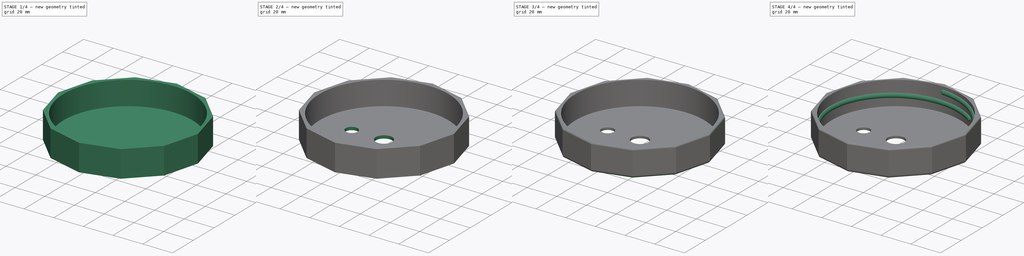
[diagram: build sequence overview — one tinted view per stage of 4, left to right]
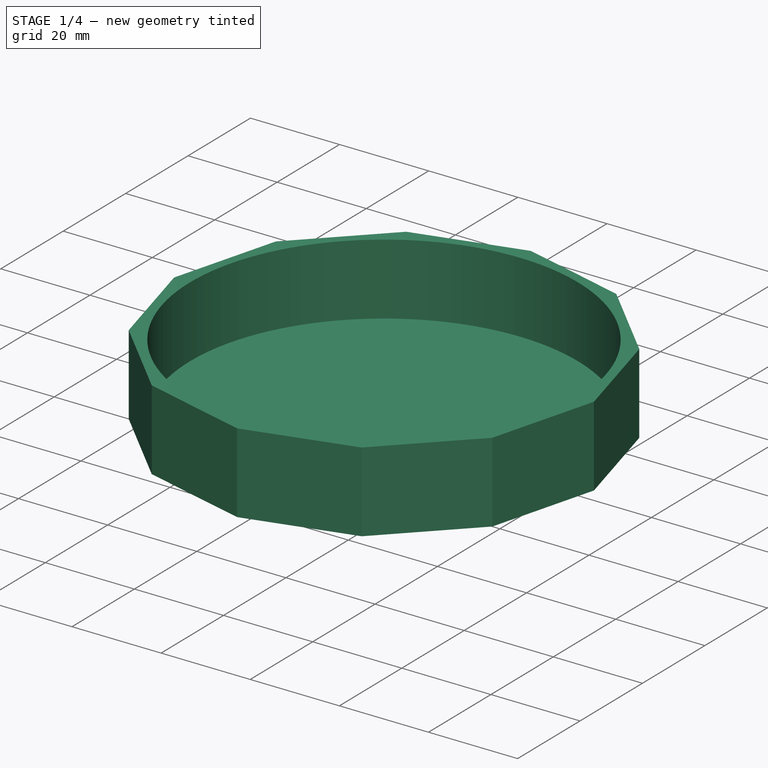
[diagram: stage 1 of 4 — iso view after this stage's code; geometry added in this stage tinted green]
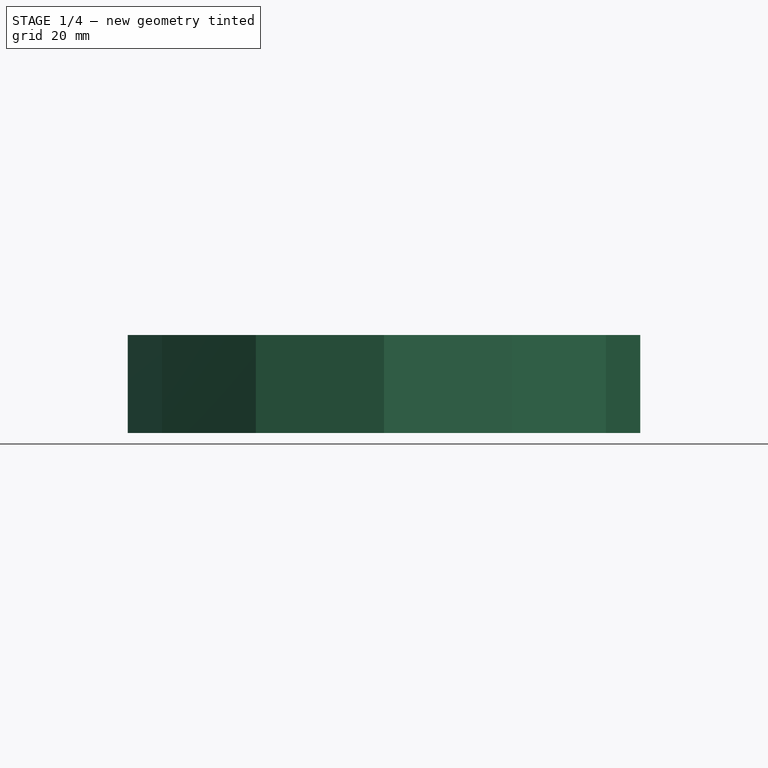
[diagram: stage 1 of 4 — front view after this stage's code; geometry added in this stage tinted green]
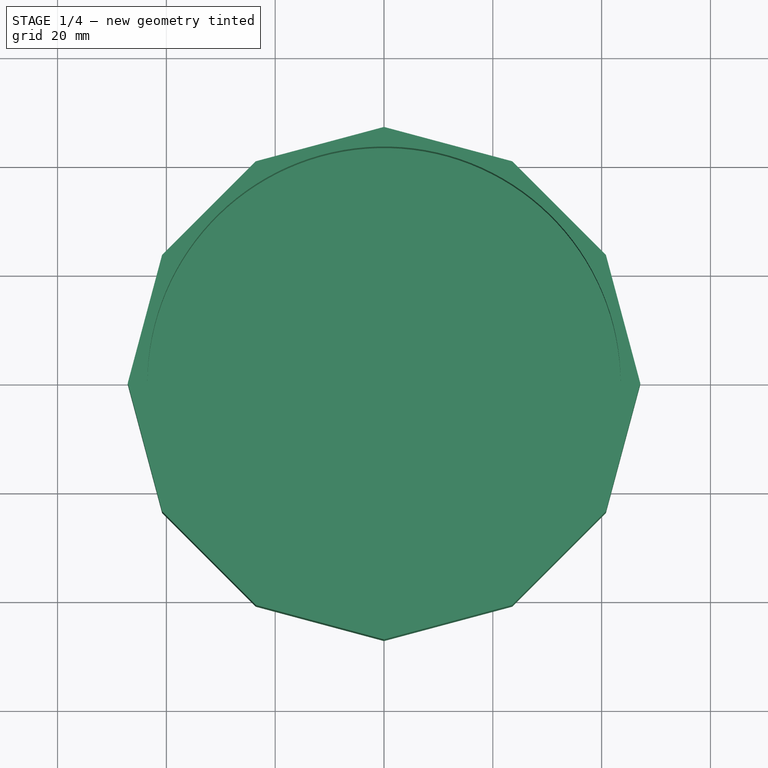
[diagram: stage 1 of 4 — top view after this stage's code; geometry added in this stage tinted green]
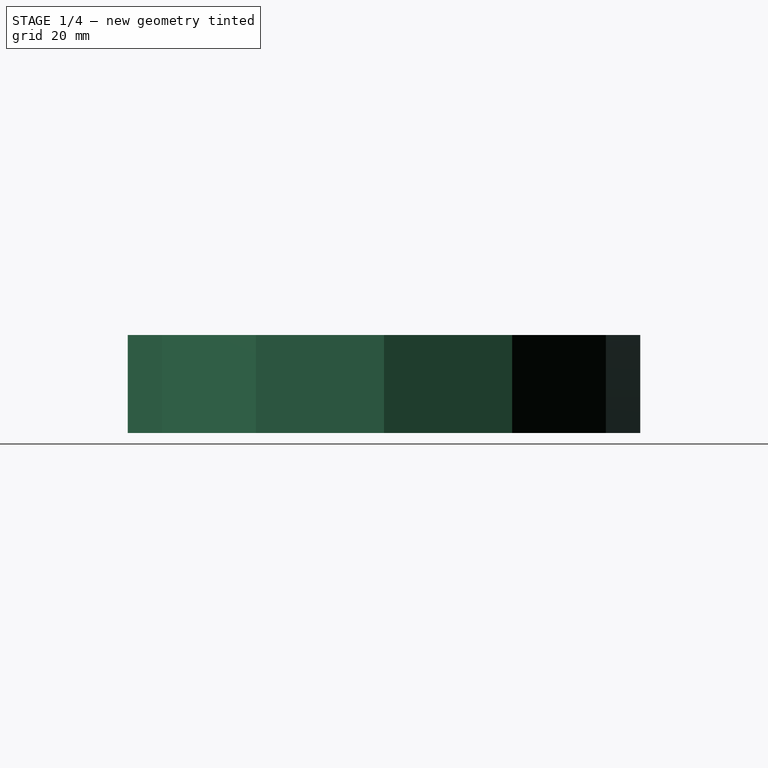
[diagram: stage 1 of 4 — right view after this stage's code; geometry added in this stage tinted green]
FCSTD DOCUMENT  (FreeCAD 2023.131R26244 +5365 (Git))
Label: Wide Mouth Jar Mycology Lid
License: All rights reserved
LicenseURL: http://en.wikipedia.org/wiki/All_rights_reserved
objects: Sketcher::SketchObject×4, PartDesign::Hole×4, PartDesign::Fillet×3, Spreadsheet::Sheet×1, PartDesign::Pad×1, PartDesign::AdditiveHelix×1, PartDesign::Chamfer×1, PartDesign::Body×1
note: 39 computed .brp shape members not serialized (recipe doc carries the construction recipe); baked Part::Feature solids carry a one-line shape summary decoded from their .brp

FEATURE [Spreadsheet::Sheet] Spreadsheet  label="Parameters"
  PythonMode = false
  ShowCells = 0
  TreeRank = 1
  cells = A2=Ring Inner Diameter; B2(Ring_Inner_Diameter)=87; C2=Should be large enough to fit over the threads on the glass jar.; A3=Ring Min Thickness; B3(Ring_Min_Thickness)=2; C3=The thickness of the thinnest part of the ring.; A4=Ring Side Height; B4(Ring_Side_Height)=16; C4=How much material will screw onto the jar.; A5=Ring Top Height; B5(Ring_Top_Height)=2; C5=How thick the lid is on top of the jar.; A7=Thread Pitch; B7(Thread_Pitch)=6.5; C7=6.5 is standard for mason jars.; A8=Thread Width; B8(Thread_Width)=3; C8=How wide an individual thread is.; A9=Thread Offset; B9(Thread_Offset)=2; C9=Distance from the bottom of the ring where the threads start.; A10=Thread Turns; B10(Thread_Turns)=1.1; C10=The number of turns inside the ring.; B12=Diameter; C12=Offset from Origin; A13=Middle Hole; B13(Middle_Hole_Diameter)=11; A14=Left Hole; B14(Left_Hole_Diameter)=8; C14(Left_Hole_Offset)==B2 / 4; A15=Right Hole; B15(Right_Hole_Diameter)=8; C15(Right_Hole_Offset)==B2 / 4; A17=Hole Fillet; B17(Hole_Fillet)=0.5; A18=Top Fillet; B18(Top_Fillet)=2; A19=Bottom Fillet; B19(Bottom_Fillet)=1
FEATURE [Sketcher::SketchObject] Sketch
  ArcFitTolerance = 1e-06
  AttachmentSupport = -> [XY_Plane]
  ExternalBSplineMaxDegree = 5
  ExternalBSplineTolerance = 0.0001
  FullyConstrained = true
  InternalTolerance = 1e-06
  InvalidShape = false
  MakeInternals = false
  MapMode = 5
  Support = -> [XY_Plane]
  TreeRank = 12
  ValidateShape = true
  expr: Constraints[37] = <<Parameters>>.Ring_Inner_Diameter / 2 + <<Parameters>>.Ring_Min_Thickness
  sketch-geometry (13):
    g0: LineSegment StartX=-40.7942 StartY=23.5525 StartZ=0 EndX=-47.1051 EndY=0 EndZ=0
    g1: LineSegment StartX=-47.1051 StartY=0 StartZ=0 EndX=-40.7942 EndY=-23.5525 EndZ=0
    g2: LineSegment StartX=-40.7942 StartY=-23.5525 StartZ=0 EndX=-23.5525 EndY=-40.7942 EndZ=0
    g3: LineSegment StartX=-23.5525 StartY=-40.7942 StartZ=0 EndX=2.13e-14 EndY=-47.1051 EndZ=0
    g4: LineSegment StartX=2.26e-14 StartY=-47.1051 StartZ=0 EndX=23.5525 EndY=-40.7942 EndZ=0
    g5: LineSegment StartX=23.5525 StartY=-40.7942 StartZ=0 EndX=40.7942 EndY=-23.5525 EndZ=0
    g6: LineSegment StartX=40.7942 StartY=-23.5525 StartZ=0 EndX=47.1051 EndY=1.07e-14 EndZ=0
    g7: LineSegment StartX=47.1051 StartY=9.2e-15 StartZ=0 EndX=40.7942 EndY=23.5525 EndZ=0
    g8: LineSegment StartX=40.7942 StartY=23.5525 StartZ=0 EndX=23.5525 EndY=40.7942 EndZ=0
    g9: LineSegment StartX=23.5525 StartY=40.7942 StartZ=0 EndX=3.6e-15 EndY=47.1051 EndZ=0
    g10: LineSegment StartX=2.9e-15 StartY=47.1051 StartZ=0 EndX=-23.5525 EndY=40.7942 EndZ=0
    g11: LineSegment StartX=-23.5525 StartY=40.7942 StartZ=0 EndX=-40.7942 EndY=23.5525 EndZ=0
    g12: Circle [constr] CenterX=0 CenterY=0 CenterZ=0 NormalX=0 NormalY=0 NormalZ=1 AngleXU=0 Radius=47.1051
  constraints (28):
    c: Coincident(g0,g1)
    c: Coincident(g1,g2)
    c: Coincident(g2,g3)
    c: Coincident(g3,g4)
    c: Coincident(g4,g5)
    c: Coincident(g5,g6)
    c: Coincident(g6,g7)
    c: Coincident(g7,g8)
    c: Coincident(g8,g9)
    c: Coincident(g9,g10)
    c: Coincident(g10,g11)
    c: Coincident(g11,g0)
    c: Equal(g0, g1-g11) x11
    c: PointOnObject(g0,g12)
    c: PointOnObject(g1,g12)
    c: PointOnObject(g2,g12)
    c: PointOnObject(g3,g12)
    c: PointOnObject(g4,g12)
    c: PointOnObject(g5,g12)
    c: PointOnObject(g6,g12)
    c: PointOnObject(g7,g12)
    c: PointOnObject(g8,g12)
    c: PointOnObject(g9,g12)
    c: PointOnObject(g10,g12)
    c: PointOnObject(g11,g12)
    c: Coincident(g12,g-1)
    c: PointOnObject(g0,g-1)
    c: Distance(g12,g0) = 45.5
FEATURE [PartDesign::Pad] Pad
  AddSubType = 0
  AlongSketchNormal = false
  AutoTaperInnerAngle = true
  CheckUpToFaceLimits = true
  ClaimChildren = false
  Direction = (0,0,1)
  Fit = 0
  FitJoin = 0
  Group_EnableExport = false
  InnerFit = 0
  InnerFitJoin = 0
  InvalidShape = false
  Length = 18
  Length2 = 100
  Linearize = true
  NewSolid = false
  Profile = -> Sketch
  Suppress = false
  TaperInnerAngle = 0
  TaperInnerAngleRev = 0
  TreeRank = 13
  Type = 0
  ValidateShape = true
  _ProfileBasedVersion = 1
  expr: Length = <<Parameters>>.Ring_Side_Height + <<Parameters>>.Ring_Top_Height
FEATURE [Sketcher::SketchObject] Sketch001  label="Jar_Hole_Drawing"
  ArcFitTolerance = 1e-06
  AttachmentSupport = -> [Pad]
  ExternalBSplineMaxDegree = 5
  ExternalBSplineTolerance = 0.0001
  FullyConstrained = true
  InternalTolerance = 1e-06
  InvalidShape = false
  MakeInternals = false
  MapMode = 5
  Placement = pos=(0,0,18) rot=(0,0,1;0rad)
  Support = -> [Pad]
  TreeRank = 14
  ValidateShape = true
  expr: Constraints[1] = <<Parameters>>.Ring_Inner_Diameter
  sketch-geometry (1):
    g0: Circle CenterX=0 CenterY=0 CenterZ=0 NormalX=0 NormalY=0 NormalZ=1 AngleXU=0 Radius=43.5
  constraints (2):
    c: Coincident(g0,g-1)
    c: Diameter(g0) = 87
FEATURE [PartDesign::Hole] Hole  label="Jar_Hole"
  AddSubType = 1
  BaseFeature = -> Pad
  ClaimChildren = false
  CustomThreadClearance = 0
  Depth = 16
  DepthType = 0
  Diameter = 87
  DrillForDepth = false
  DrillPoint = 0
  DrillPointAngle = 118
  Fit = 0
  FitJoin = 0
  Group_EnableExport = false
  HoleCutCountersinkAngle = 90
  HoleCutCustomValues = false
  HoleCutDepth = 0
  HoleCutDiameter = 87.1
  HoleCutType = 0
  InnerFit = 0
  InnerFitJoin = 0
  InvalidShape = false
  Linearize = true
  ModelThread = false
  NewSolid = false
  Profile = -> Sketch001
  Suppress = false
  Tapered = false
  TaperedAngle = 90
  ThreadClass = 0
  ThreadDepth = 16
  ThreadDepthType = 0
  ThreadDirection = 0
  ThreadFit = 0
  ThreadSize = 0
  ThreadType = 0
  Threaded = false
  TreeRank = 15
  UseCustomThreadClearance = false
  ValidateShape = true
  _ProfileBasedVersion = 1
  expr: Depth = <<Parameters>>.Ring_Side_Height
  expr: Diameter = <<Parameters>>.Ring_Inner_Diameter
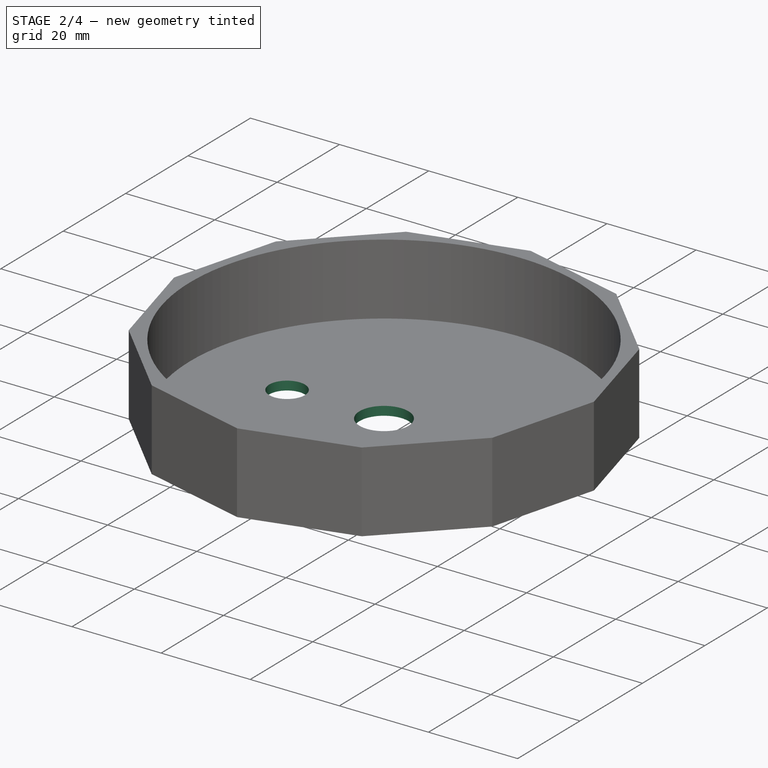
[diagram: stage 2 of 4 — iso view after this stage's code; geometry added in this stage tinted green]
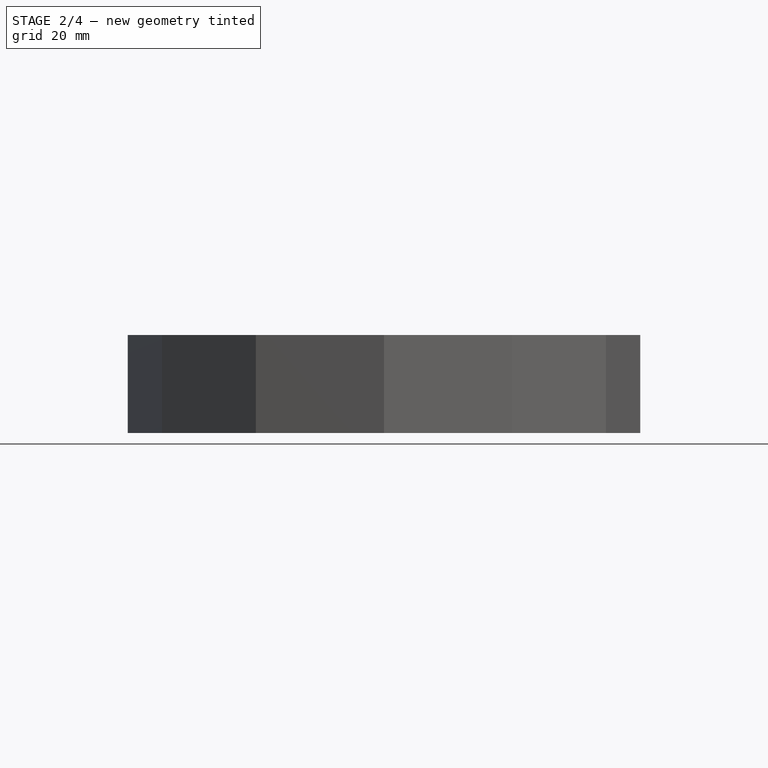
[diagram: stage 2 of 4 — front view after this stage's code; geometry added in this stage tinted green]
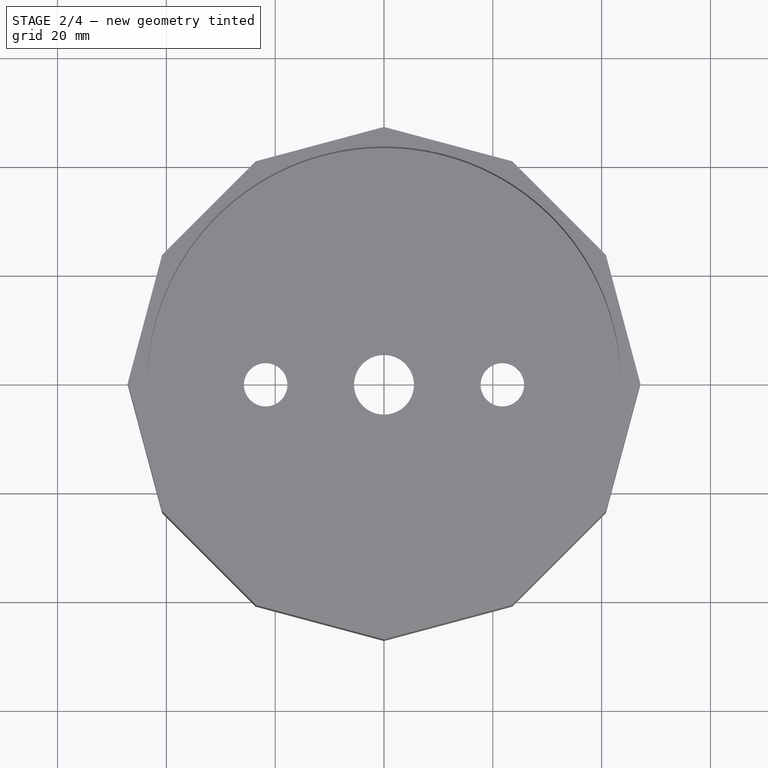
[diagram: stage 2 of 4 — top view after this stage's code; geometry added in this stage tinted green]
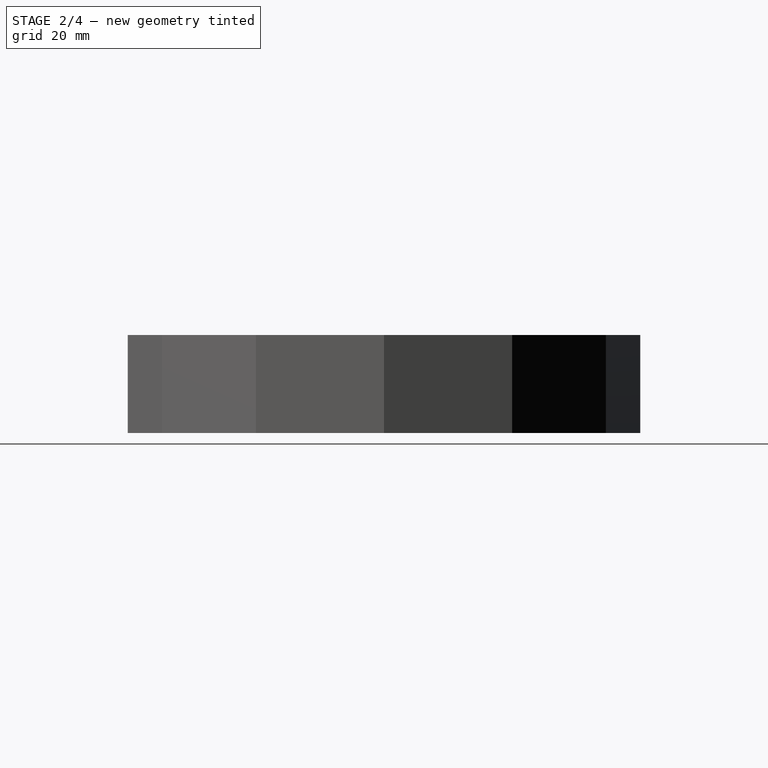
[diagram: stage 2 of 4 — right view after this stage's code; geometry added in this stage tinted green]
FEATURE [Sketcher::SketchObject] Sketch002
  ArcFitTolerance = 1e-06
  AttachmentSupport = -> [Hole]
  ExternalBSplineMaxDegree = 5
  ExternalBSplineTolerance = 0.0001
  FullyConstrained = true
  InternalTolerance = 1e-06
  InvalidShape = false
  MakeInternals = false
  MapMode = 5
  Placement = pos=(0,0,0) rot=(1,0,0;3.14159rad)
  Support = -> [Hole]
  TreeRank = 16
  ValidateShape = true
  expr: Constraints[1] = <<Parameters>>.Middle_Hole_Diameter
  expr: Constraints[4] = <<Parameters>>.Left_Hole_Diameter
  expr: Constraints[5] = <<Parameters>>.Right_Hole_Diameter
  expr: Constraints[6] = <<Parameters>>.Left_Hole_Offset
  expr: Constraints[7] = <<Parameters>>.Right_Hole_Offset
  sketch-geometry (3):
    g0: Circle CenterX=0 CenterY=0 CenterZ=0 NormalX=0 NormalY=0 NormalZ=1 AngleXU=0 Radius=5.5
    g1: Circle CenterX=-21.75 CenterY=0 CenterZ=0 NormalX=0 NormalY=0 NormalZ=1 AngleXU=0 Radius=4
    g2: Circle CenterX=21.75 CenterY=0 CenterZ=0 NormalX=0 NormalY=0 NormalZ=1 AngleXU=0 Radius=4
  constraints (8):
    c: Coincident(g0,g-1)
    c: Diameter(g0) = 11
    c: PointOnObject(g1,g-1)
    c: PointOnObject(g2,g-1)
    c: Diameter(g1) = 8
    c: Diameter(g2) = 8
    c: Distance(g1,g0) = 21.75
    c: Distance(g0,g2) = 21.75
FEATURE [PartDesign::Hole] Hole001  label="Middle_Hole"
  AddSubType = 1
  BaseFeature = -> Hole
  ClaimChildren = false
  CustomThreadClearance = 0
  Depth = 2
  DepthType = 0
  Diameter = 11
  DrillForDepth = false
  DrillPoint = 0
  DrillPointAngle = 118
  Fit = 0
  FitJoin = 0
  Group_EnableExport = false
  HoleCutCountersinkAngle = 90
  HoleCutCustomValues = false
  HoleCutDepth = 0
  HoleCutDiameter = 6.1
  HoleCutType = 0
  InnerFit = 0
  InnerFitJoin = 0
  InvalidShape = false
  Linearize = true
  ModelThread = false
  NewSolid = false
  Profile = -> Sketch002 [Edge1]
  Suppress = false
  Tapered = false
  TaperedAngle = 90
  ThreadClass = 0
  ThreadDepth = 2
  ThreadDepthType = 0
  ThreadDirection = 0
  ThreadFit = 0
  ThreadSize = 0
  ThreadType = 0
  Threaded = false
  TreeRank = 17
  UseCustomThreadClearance = false
  ValidateShape = true
  _ProfileBasedVersion = 1
  expr: Depth = <<Parameters>>.Ring_Top_Height
  expr: Diameter = <<Parameters>>.Middle_Hole_Diameter
FEATURE [PartDesign::Hole] Hole002  label="Left_Hole"
  AddSubType = 1
  BaseFeature = -> Hole001
  ClaimChildren = false
  CustomThreadClearance = 0
  Depth = 2
  DepthType = 0
  Diameter = 8
  DrillForDepth = false
  DrillPoint = 0
  DrillPointAngle = 118
  Fit = 0
  FitJoin = 0
  Group_EnableExport = false
  HoleCutCountersinkAngle = 90
  HoleCutCustomValues = false
  HoleCutDepth = 0
  HoleCutDiameter = 6.1
  HoleCutType = 0
  InnerFit = 0
  InnerFitJoin = 0
  InvalidShape = false
  Linearize = true
  ModelThread = false
  NewSolid = false
  Profile = -> Sketch002 [Edge3]
  Suppress = false
  Tapered = false
  TaperedAngle = 90
  ThreadClass = 0
  ThreadDepth = 2
  ThreadDepthType = 0
  ThreadDirection = 0
  ThreadFit = 0
  ThreadSize = 0
  ThreadType = 0
  Threaded = false
  TreeRank = 18
  UseCustomThreadClearance = false
  ValidateShape = true
  _ProfileBasedVersion = 1
  expr: Depth = <<Parameters>>.Ring_Top_Height
  expr: Diameter = <<Parameters>>.Left_Hole_Diameter
FEATURE [PartDesign::Hole] Hole003  label="Right_Hole"
  AddSubType = 1
  BaseFeature = -> Hole002
  ClaimChildren = false
  CustomThreadClearance = 0
  Depth = 2
  DepthType = 0
  Diameter = 8
  DrillForDepth = false
  DrillPoint = 0
  DrillPointAngle = 118
  Fit = 0
  FitJoin = 0
  Group_EnableExport = false
  HoleCutCountersinkAngle = 90
  HoleCutCustomValues = false
  HoleCutDepth = 0
  HoleCutDiameter = 6.1
  HoleCutType = 0
  InnerFit = 0
  InnerFitJoin = 0
  InvalidShape = false
  Linearize = true
  ModelThread = false
  NewSolid = false
  Profile = -> Sketch002 [Edge2]
  Suppress = false
  Tapered = false
  TaperedAngle = 90
  ThreadClass = 0
  ThreadDepth = 2
  ThreadDepthType = 0
  ThreadDirection = 0
  ThreadFit = 0
  ThreadSize = 0
  ThreadType = 0
  Threaded = false
  TreeRank = 19
  UseCustomThreadClearance = false
  ValidateShape = true
  _ProfileBasedVersion = 1
  expr: Depth = <<Parameters>>.Ring_Top_Height
  expr: Diameter = <<Parameters>>.Right_Hole_Diameter
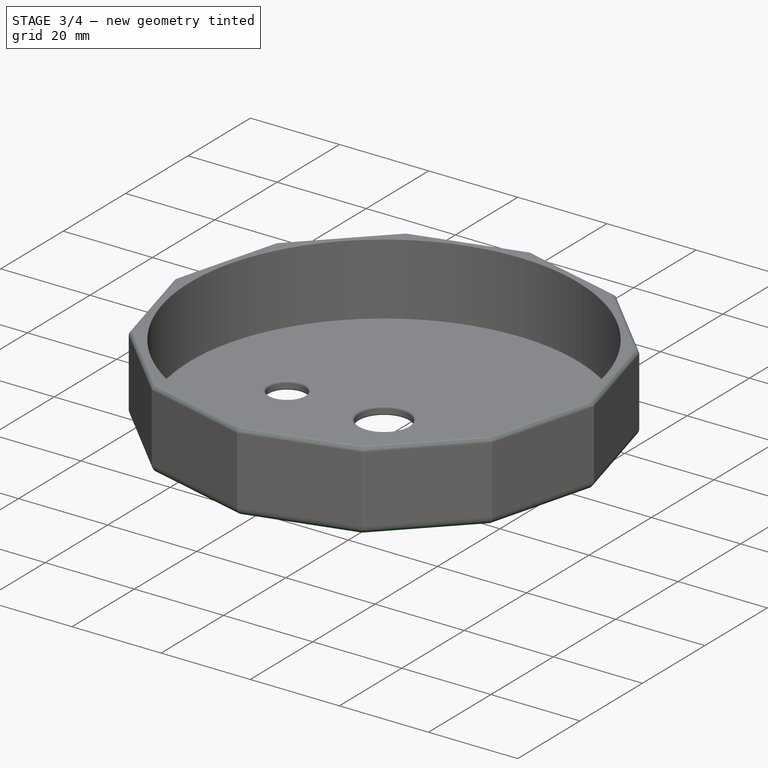
[diagram: stage 3 of 4 — iso view after this stage's code; geometry added in this stage tinted green]
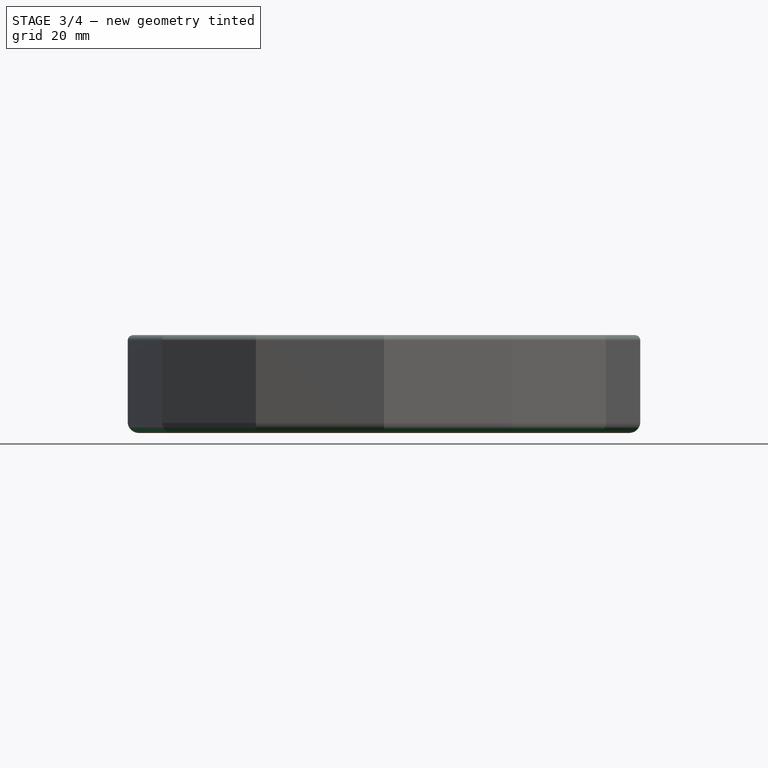
[diagram: stage 3 of 4 — front view after this stage's code; geometry added in this stage tinted green]
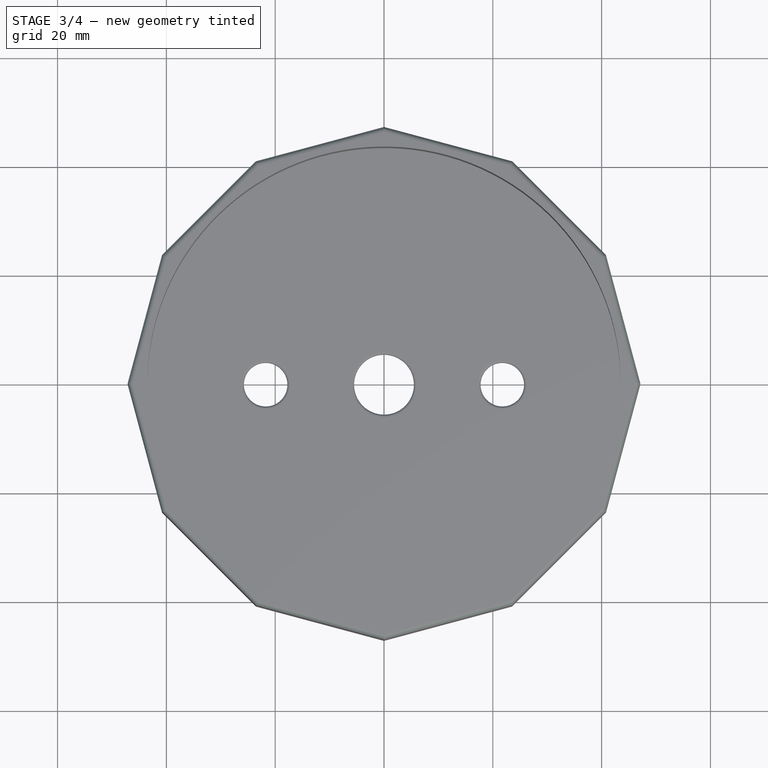
[diagram: stage 3 of 4 — top view after this stage's code; geometry added in this stage tinted green]
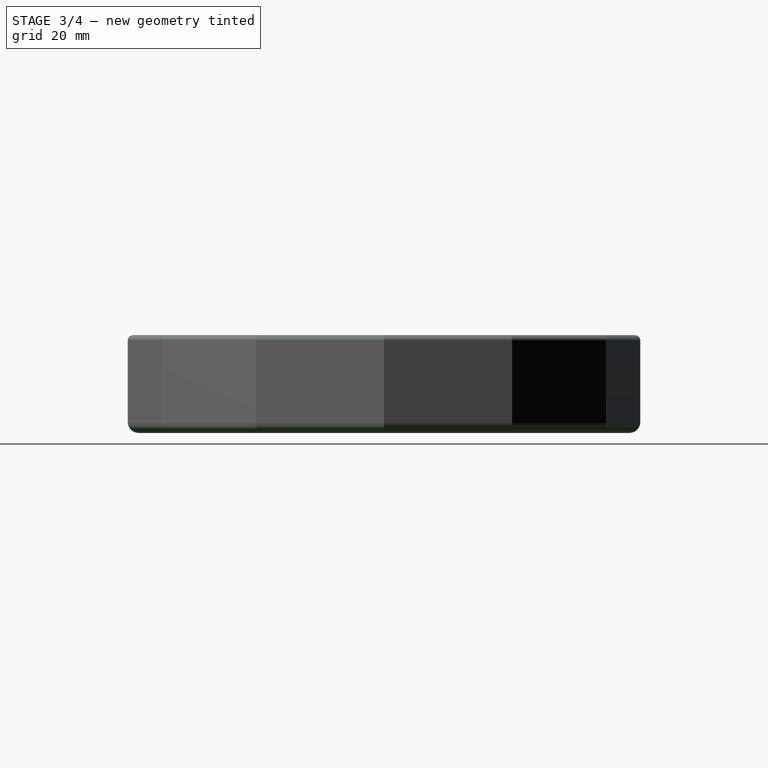
[diagram: stage 3 of 4 — right view after this stage's code; geometry added in this stage tinted green]
FEATURE [PartDesign::Fillet] Fillet  label="Hole_Fillet"
  AddSubType = 0
  Base = -> Hole003 [Edge21,Edge44,Edge22,Edge46,Edge20,Edge42]
  BaseFeature = -> Hole003
  Group_EnableExport = false
  InvalidShape = false
  NewSolid = false
  Radius = 0.5
  SupportTransform = false
  Suppress = false
  TreeRank = 24
  ValidateShape = true
  expr: Radius = <<Parameters>>.Hole_Fillet
FEATURE [PartDesign::Fillet] Fillet001  label="Bottom_Fillet"
  AddSubType = 0
  Base = -> Fillet [Edge40,Edge36,Edge32,Edge28,Edge24,Edge20,Edge22,Edge26,Edge30,Edge34,Edge38,Edge41]
  BaseFeature = -> Fillet
  Group_EnableExport = false
  InvalidShape = false
  NewSolid = false
  Radius = 1
  SupportTransform = false
  Suppress = false
  TreeRank = 25
  ValidateShape = true
  expr: Radius = <<Parameters>>.Bottom_Fillet
FEATURE [PartDesign::Fillet] Fillet002  label="Top_Fillet"
  AddSubType = 0
  Base = -> Fillet001 [Edge15,Edge17,Edge19,Edge21,Edge20,Edge18,Edge16,Edge14,Edge12,Edge3,Edge7,Edge13]
  BaseFeature = -> Fillet001
  Group_EnableExport = false
  InvalidShape = false
  NewSolid = false
  Radius = 2
  SupportTransform = false
  Suppress = false
  TreeRank = 26
  ValidateShape = true
  expr: Radius = <<Parameters>>.Top_Fillet
FEATURE [PartDesign::Body] Body
  AutoGroupSolids = false
  BaseFeature = -> Pad
  ClaimAllChildren = false
  ExportMode = 0
  Group = -> [Sketch,Pad,Sketch001,Hole,Sketch002,Hole001,Hole002,Hole003,Fillet,Fillet001,Fillet002,Sketch003,Helix,Chamfer]
  InvalidShape = false
  Origin = -> Origin
  Tip = -> Fillet002
  TreeRank = 11
  ValidateShape = true
  _ExportChildren = -> [Pad,Hole,Hole001,Hole002,Hole003,Fillet,Fillet001,Fillet002,Helix,Chamfer]
  _GroupVersion = 1
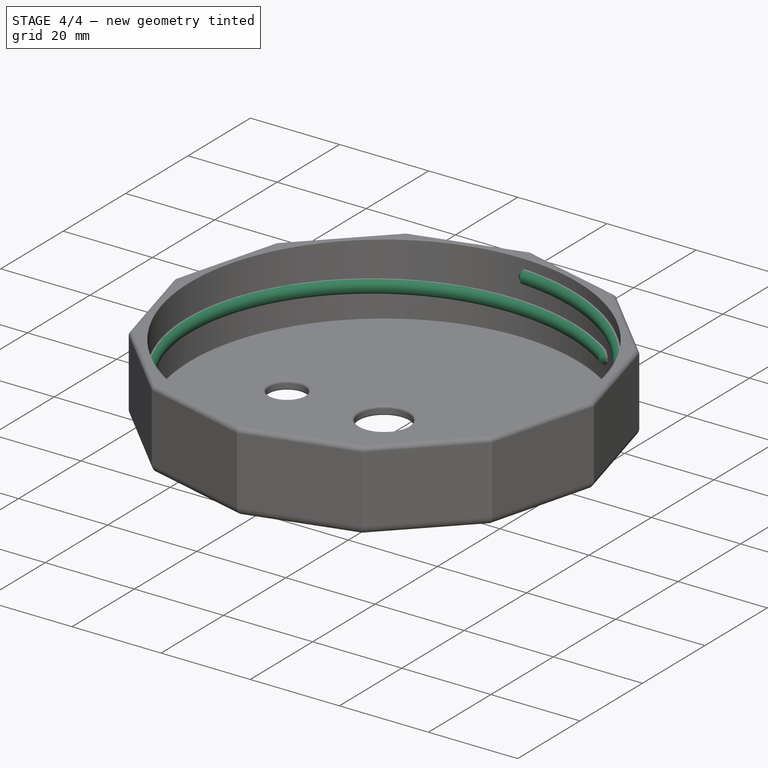
[diagram: stage 4 of 4 — iso view after this stage's code; geometry added in this stage tinted green]
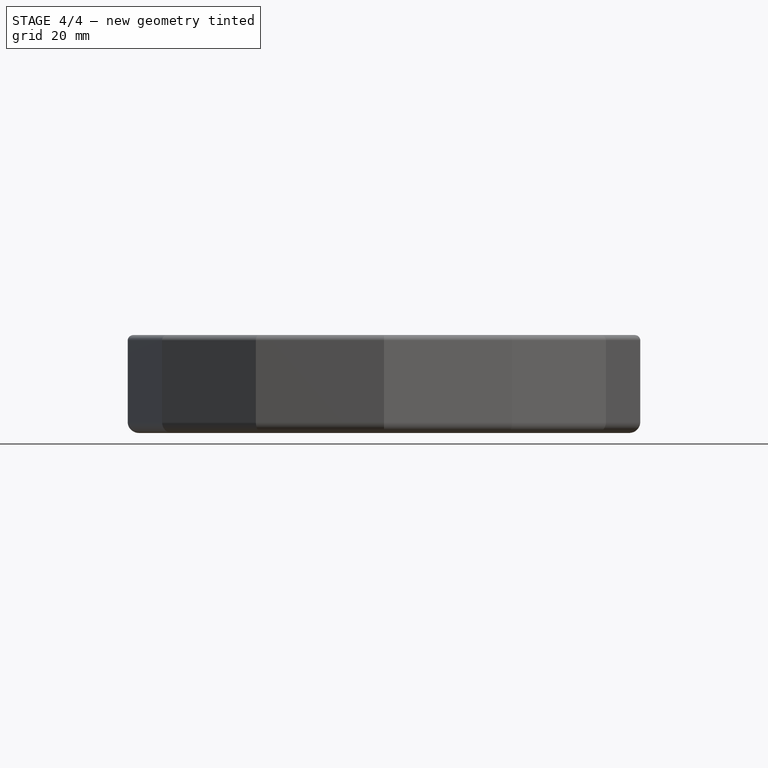
[diagram: stage 4 of 4 — front view after this stage's code; geometry added in this stage tinted green]
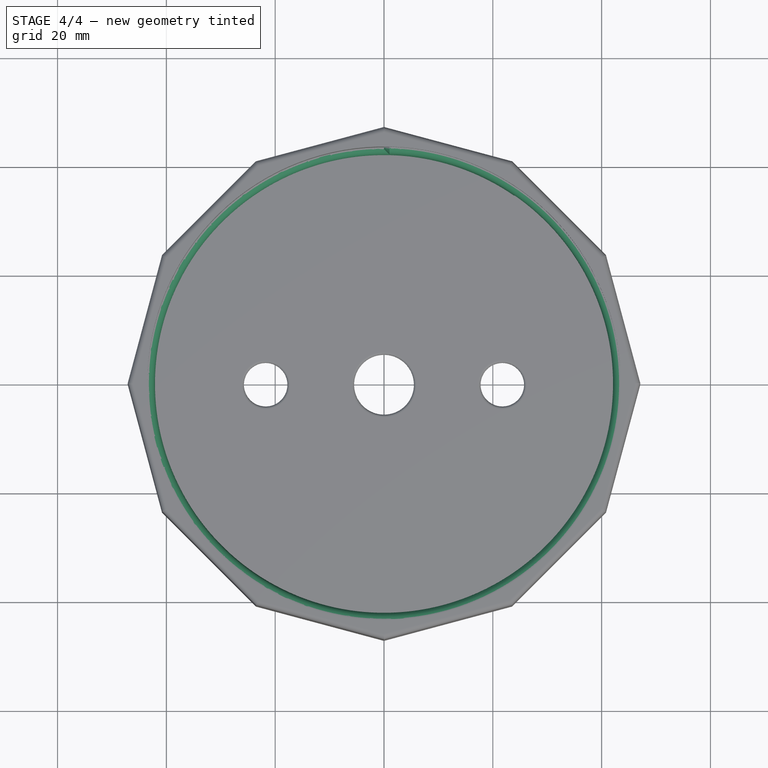
[diagram: stage 4 of 4 — top view after this stage's code; geometry added in this stage tinted green]
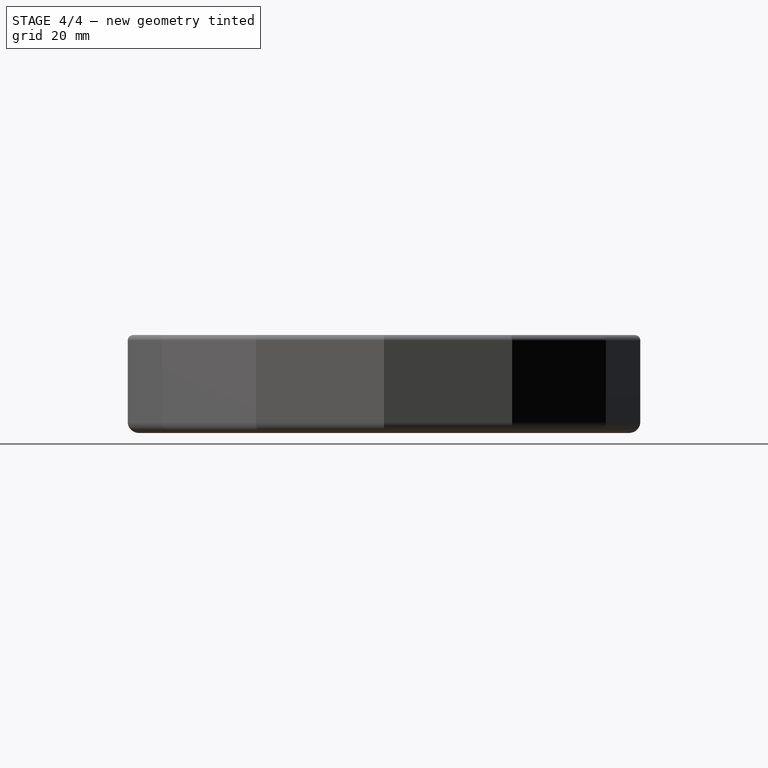
[diagram: stage 4 of 4 — right view after this stage's code; geometry added in this stage tinted green]
FEATURE [Sketcher::SketchObject] Sketch003
  ArcFitTolerance = 1e-06
  AttachmentSupport = -> [YZ_Plane]
  ExternalBSplineMaxDegree = 5
  ExternalBSplineTolerance = 0.0001
  FullyConstrained = true
  InternalTolerance = 1e-06
  InvalidShape = false
  MakeInternals = false
  MapMode = 5
  Placement = pos=(0,0,0) rot=(0.57735,0.57735,0.57735;2.0944rad)
  Support = -> [YZ_Plane]
  TreeRank = 21
  ValidateShape = true
  expr: Constraints[1] = <<Parameters>>.Thread_Width
  expr: Constraints[5] = <<Parameters>>.Ring_Side_Height + <<Parameters>>.Ring_Top_Height - <<Parameters>>.Thread_Offset
  expr: Constraints[6] = <<Parameters>>.Ring_Inner_Diameter / 2 + 0.1
  sketch-geometry (2):
    g0: LineSegment StartX=43.6 StartY=16 StartZ=0 EndX=43.6 EndY=13 EndZ=0
    g1: ArcOfCircle CenterX=43.6 CenterY=14.5 CenterZ=0 NormalX=0 NormalY=0 NormalZ=1 AngleXU=0 Radius=1.5 StartAngle=1.5708 EndAngle=4.71239
  constraints (7):
    c: Vertical(g0)
    c: Distance(g0,g0) = 3
    c: Coincident(g1,g0)
    c: Coincident(g1,g0)
    c: PointOnObject(g1,g0)
    c: DistanceY(g-1,g0) = 16
    c: DistanceX(g-1,g0) = 43.6
FEATURE [PartDesign::AdditiveHelix] Helix  label="Threads"
  AddSubType = 0
  Angle = 0
  Axis = (-2e-16,3e-16,1)
  Base = (0,0,0)
  ClaimChildren = false
  Fit = 0
  FitJoin = 0
  Group_EnableExport = true
  Growth = 0
  HasBeenEdited = true
  Height = 7.15
  InnerFit = 0
  InnerFitJoin = 0
  InvalidShape = false
  LeftHanded = false
  Linearize = true
  Mode = 1
  NewSolid = false
  Outside = false
  Pitch = 6.5
  Profile = -> Sketch003
  ReferenceAxis = -> Sketch003 [V_Axis]
  Refine = true
  Reversed = true
  Suppress = false
  TreeRank = 22
  Turns = 1.1
  ValidateShape = true
  _ProfileBasedVersion = 1
  expr: Pitch = <<Parameters>>.Thread_Pitch
  expr: Turns = <<Parameters>>.Thread_Turns
FEATURE [PartDesign::Chamfer] Chamfer  label="Thread_Chamfer"
  AddSubType = 0
  Angle = 45
  Base = -> Helix [Edge10,Edge5]
  BaseFeature = -> Helix
  ChamferType = 0
  FlipDirection = false
  Group_EnableExport = false
  InvalidShape = false
  NewSolid = false
  Size = 1
  Size2 = 1
  SupportTransform = false
  Suppress = false
  TreeRank = 23
  ValidateShape = true
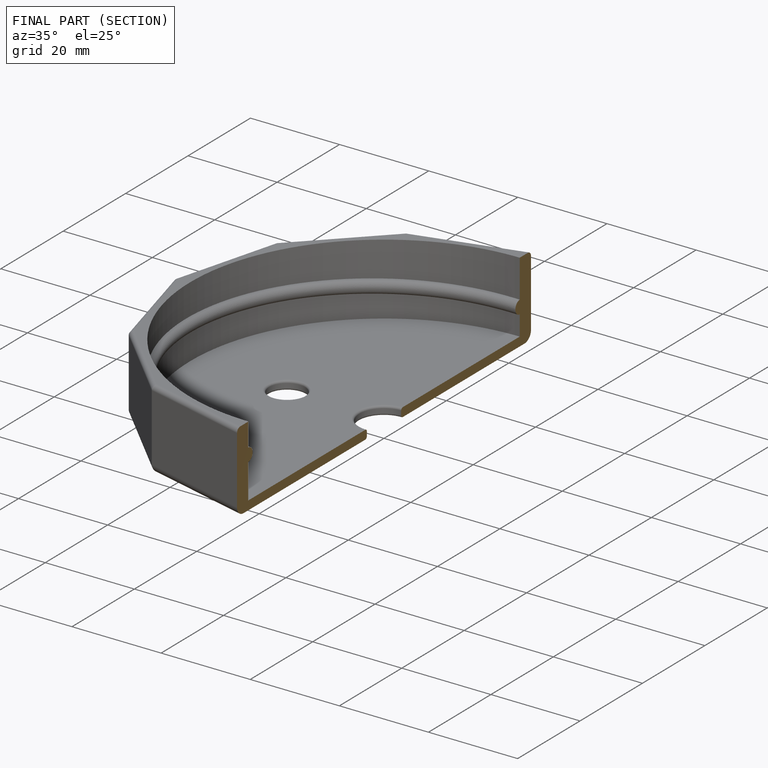
[diagram: finished part — half-section view (interior)]
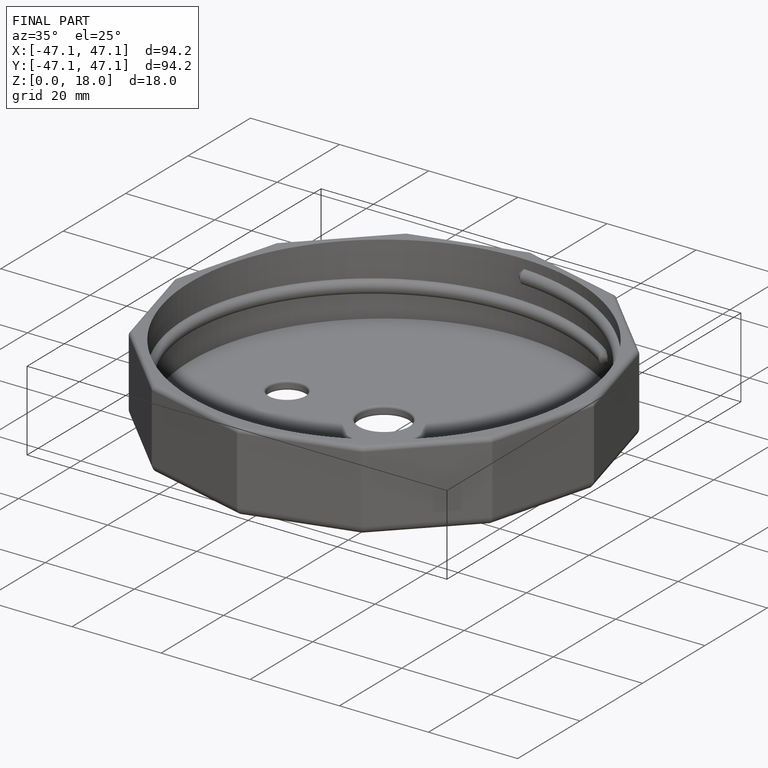
[diagram: finished part — iso view with bounding-box wireframe]
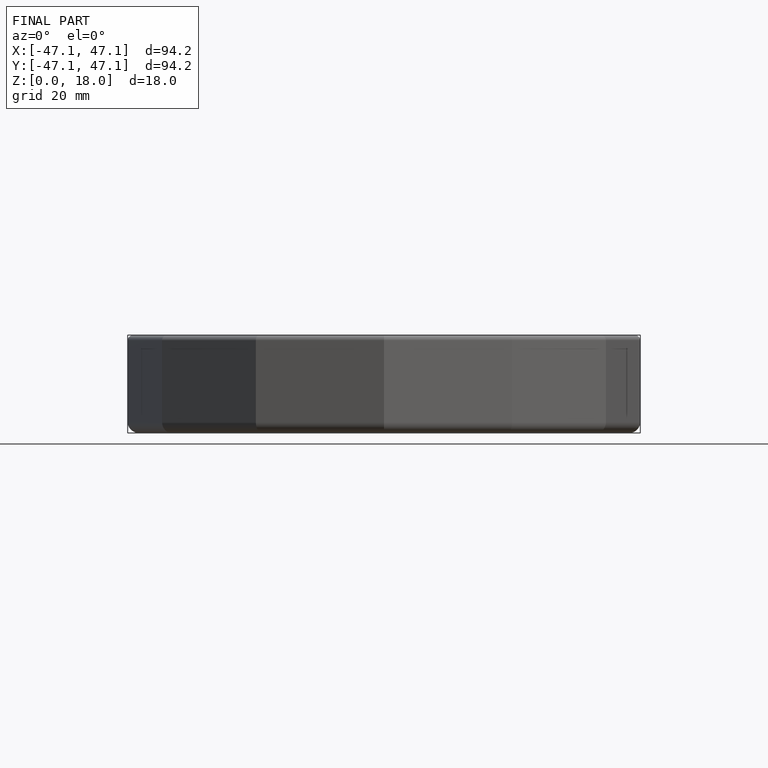
[diagram: finished part — front view with bounding-box wireframe]
